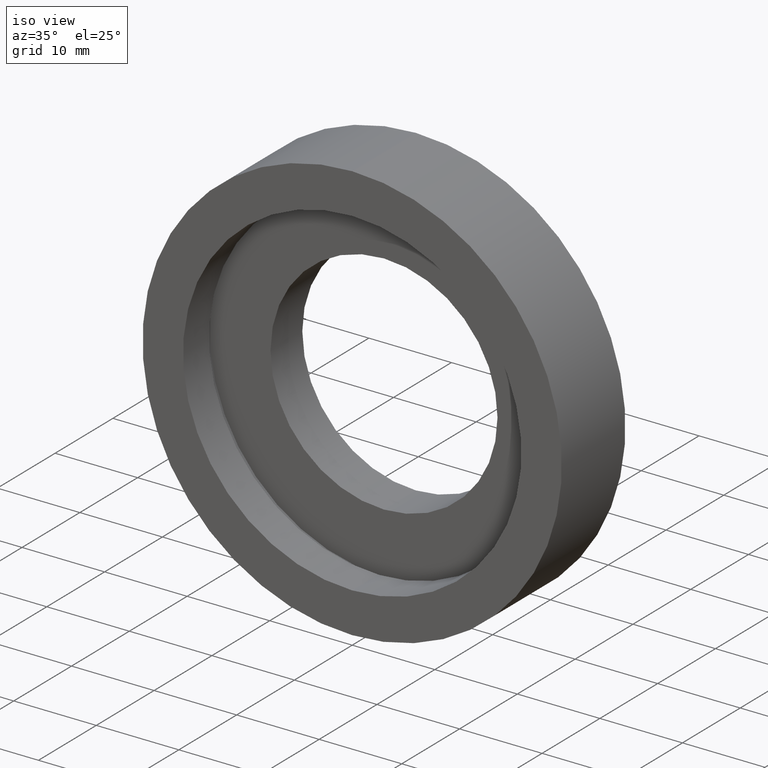
[diagram: clean part render]
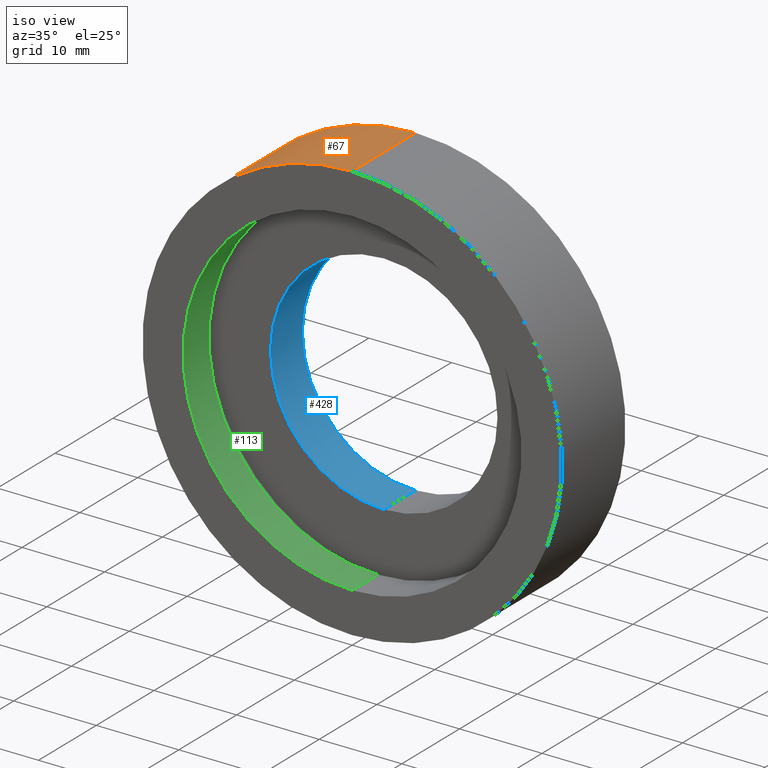
[diagram: same view with three faces highlighted in distinct colors, each labeled with its STEP entity id]
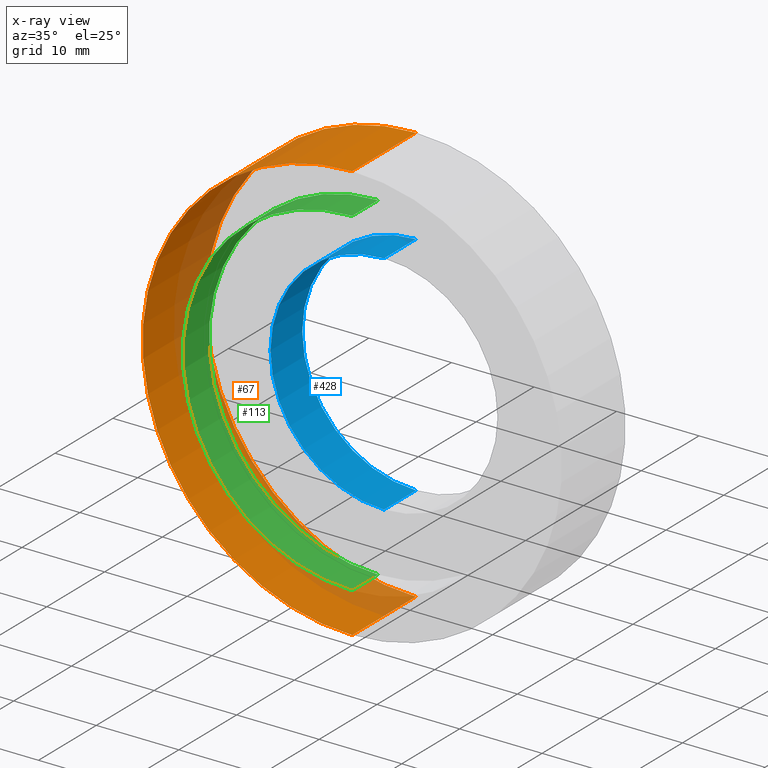
[diagram: x-ray of the same camera — body ghosted, the three highlighted faces saturated]
A machine part, iso view with three faces highlighted in distinct colors.
The next image is the same camera in x-ray (body ghosted, the three faces saturated) — at least one of them is partly hidden behind the body in this view.
Their STEP definitions:

[orange] entity #67 — the highlighted cylindrical surface (partial cylindrical patch) has radius 25.4 mm, axis along (-0, 1, -0).
#15 = DIRECTION ( 'NONE',  ( -0.0000000000000000000, 1.000000000000000000, -0.0000000000000000000 ) ) ;
#30 = DIRECTION ( 'NONE',  ( -0.0000000000000000000, 1.000000000000000000, -0.0000000000000000000 ) ) ;
#32 = AXIS2_PLACEMENT_3D ( 'NONE', #423, #30, #244 ) ;
#60 = CARTESIAN_POINT ( 'NONE',  ( 3.110602869834277300E-015, 0.0000000000000000000, -25.40000000000000200 ) ) ;
#66 = EDGE_CURVE ( 'NONE', #266, #87, #114, .T. ) ;
#67 = ADVANCED_FACE ( 'NONE', ( #400 ), #144, .T. ) ;
#76 = EDGE_CURVE ( 'NONE', #357, #87, #136, .T. ) ;
#79 = DIRECTION ( 'NONE',  ( 0.0000000000000000000, 0.0000000000000000000, 1.000000000000000000 ) ) ;
#81 = CARTESIAN_POINT ( 'NONE',  ( 0.0000000000000000000, 10.99999999999999600, 0.0000000000000000000 ) ) ;
#87 = VERTEX_POINT ( 'NONE', #256 ) ;
#106 = VECTOR ( 'NONE', #15, 1000.000000000000000 ) ;
#114 = LINE ( 'NONE', #165, #378 ) ;
#135 = CARTESIAN_POINT ( 'NONE',  ( 0.0000000000000000000, 60.02082041425541100, 0.0000000000000000000 ) ) ;
#136 = CIRCLE ( 'NONE', #202, 25.40000000000000200 ) ;
#139 = LINE ( 'NONE', #208, #106 ) ;
#144 = CYLINDRICAL_SURFACE ( 'NONE', #237, 25.40000000000000200 ) ;
#151 = EDGE_CURVE ( 'NONE', #397, #266, #248, .T. ) ;
#161 = EDGE_LOOP ( 'NONE', ( #415, #274, #341, #429 ) ) ;
#165 = CARTESIAN_POINT ( 'NONE',  ( 0.0000000000000000000, 60.02082041425541100, 25.40000000000000200 ) ) ;
#168 = DIRECTION ( 'NONE',  ( 0.0000000000000000000, 0.0000000000000000000, 1.000000000000000000 ) ) ;
#178 = DIRECTION ( 'NONE',  ( -0.0000000000000000000, 1.000000000000000000, -0.0000000000000000000 ) ) ;
#202 = AXIS2_PLACEMENT_3D ( 'NONE', #81, #308, #79 ) ;
#208 = CARTESIAN_POINT ( 'NONE',  ( 3.110602869834277300E-015, 60.02082041425541100, -25.40000000000000200 ) ) ;
#237 = AXIS2_PLACEMENT_3D ( 'NONE', #135, #178, #168 ) ;
#244 = DIRECTION ( 'NONE',  ( 0.0000000000000000000, 0.0000000000000000000, 1.000000000000000000 ) ) ;
#248 = CIRCLE ( 'NONE', #32, 25.40000000000000200 ) ;
#256 = CARTESIAN_POINT ( 'NONE',  ( 0.0000000000000000000, 10.99999999999999600, 25.40000000000000200 ) ) ;
#266 = VERTEX_POINT ( 'NONE', #374 ) ;
#274 = ORIENTED_EDGE ( 'NONE', *, *, #151, .T. ) ;
#306 = DIRECTION ( 'NONE',  ( -0.0000000000000000000, 1.000000000000000000, -0.0000000000000000000 ) ) ;
#308 = DIRECTION ( 'NONE',  ( -0.0000000000000000000, 1.000000000000000000, -0.0000000000000000000 ) ) ;
#341 = ORIENTED_EDGE ( 'NONE', *, *, #66, .T. ) ;
#357 = VERTEX_POINT ( 'NONE', #385 ) ;
#374 = CARTESIAN_POINT ( 'NONE',  ( 0.0000000000000000000, 0.0000000000000000000, 25.40000000000000200 ) ) ;
#378 = VECTOR ( 'NONE', #306, 1000.000000000000000 ) ;
#385 = CARTESIAN_POINT ( 'NONE',  ( 3.110602869834277300E-015, 10.99999999999999600, -25.40000000000000200 ) ) ;
#387 = EDGE_CURVE ( 'NONE', #397, #357, #139, .T. ) ;
#397 = VERTEX_POINT ( 'NONE', #60 ) ;
#400 = FACE_OUTER_BOUND ( 'NONE', #161, .T. ) ;
#415 = ORIENTED_EDGE ( 'NONE', *, *, #387, .F. ) ;
#423 = CARTESIAN_POINT ( 'NONE',  ( 0.0000000000000000000, 0.0000000000000000000, 0.0000000000000000000 ) ) ;
#429 = ORIENTED_EDGE ( 'NONE', *, *, #76, .F. ) ;

[blue] entity #428 — the highlighted cylindrical surface (partial cylindrical patch) has radius 13.75 mm, axis along (-0, 1, -0).
#18 = VERTEX_POINT ( 'NONE', #388 ) ;
#33 = EDGE_CURVE ( 'NONE', #169, #241, #72, .T. ) ;
#41 = CARTESIAN_POINT ( 'NONE',  ( 1.683889348827611400E-015, 60.02082041425541100, -13.75000000000000500 ) ) ;
#61 = ORIENTED_EDGE ( 'NONE', *, *, #95, .F. ) ;
#72 = LINE ( 'NONE', #41, #366 ) ;
#74 = EDGE_CURVE ( 'NONE', #241, #18, #150, .T. ) ;
#88 = CARTESIAN_POINT ( 'NONE',  ( 1.683889348827611800E-015, 10.99999999999999600, -13.75000000000000900 ) ) ;
#95 = EDGE_CURVE ( 'NONE', #100, #18, #162, .T. ) ;
#96 = AXIS2_PLACEMENT_3D ( 'NONE', #392, #198, #399 ) ;
#100 = VERTEX_POINT ( 'NONE', #206 ) ;
#131 = ORIENTED_EDGE ( 'NONE', *, *, #313, .F. ) ;
#150 = CIRCLE ( 'NONE', #336, 13.75000000000000700 ) ;
#153 = CARTESIAN_POINT ( 'NONE',  ( 1.683889348827611400E-015, 5.499999999999998200, -13.75000000000000500 ) ) ;
#162 = LINE ( 'NONE', #254, #411 ) ;
#169 = VERTEX_POINT ( 'NONE', #153 ) ;
#171 = DIRECTION ( 'NONE',  ( -0.0000000000000000000, 1.000000000000000000, -0.0000000000000000000 ) ) ;
#172 = FACE_OUTER_BOUND ( 'NONE', #272, .T. ) ;
#198 = DIRECTION ( 'NONE',  ( -0.0000000000000000000, 1.000000000000000000, -0.0000000000000000000 ) ) ;
#206 = CARTESIAN_POINT ( 'NONE',  ( 0.0000000000000000000, 5.499999999999998200, 13.75000000000000500 ) ) ;
#241 = VERTEX_POINT ( 'NONE', #88 ) ;
#245 = CARTESIAN_POINT ( 'NONE',  ( 0.0000000000000000000, 60.02082041425541100, 0.0000000000000000000 ) ) ;
#254 = CARTESIAN_POINT ( 'NONE',  ( 0.0000000000000000000, 60.02082041425541100, 13.75000000000000500 ) ) ;
#257 = ORIENTED_EDGE ( 'NONE', *, *, #74, .T. ) ;
#264 = DIRECTION ( 'NONE',  ( -0.0000000000000000000, 1.000000000000000000, -0.0000000000000000000 ) ) ;
#272 = EDGE_LOOP ( 'NONE', ( #131, #413, #257, #61 ) ) ;
#284 = CARTESIAN_POINT ( 'NONE',  ( 0.0000000000000000000, 10.99999999999999600, 0.0000000000000000000 ) ) ;
#287 = DIRECTION ( 'NONE',  ( -0.0000000000000000000, 1.000000000000000000, -0.0000000000000000000 ) ) ;
#299 = DIRECTION ( 'NONE',  ( 0.0000000000000000000, 0.0000000000000000000, 1.000000000000000000 ) ) ;
#304 = DIRECTION ( 'NONE',  ( -0.0000000000000000000, 1.000000000000000000, -0.0000000000000000000 ) ) ;
#313 = EDGE_CURVE ( 'NONE', #169, #100, #390, .T. ) ;
#336 = AXIS2_PLACEMENT_3D ( 'NONE', #284, #171, #299 ) ;
#353 = CYLINDRICAL_SURFACE ( 'NONE', #383, 13.75000000000000500 ) ;
#366 = VECTOR ( 'NONE', #287, 1000.000000000000000 ) ;
#383 = AXIS2_PLACEMENT_3D ( 'NONE', #245, #304, #422 ) ;
#388 = CARTESIAN_POINT ( 'NONE',  ( 0.0000000000000000000, 10.99999999999999600, 13.75000000000000700 ) ) ;
#390 = CIRCLE ( 'NONE', #96, 13.75000000000000500 ) ;
#392 = CARTESIAN_POINT ( 'NONE',  ( 0.0000000000000000000, 5.499999999999998200, 0.0000000000000000000 ) ) ;
#399 = DIRECTION ( 'NONE',  ( 0.0000000000000000000, 0.0000000000000000000, 1.000000000000000000 ) ) ;
#411 = VECTOR ( 'NONE', #264, 1000.000000000000000 ) ;
#413 = ORIENTED_EDGE ( 'NONE', *, *, #33, .T. ) ;
#422 = DIRECTION ( 'NONE',  ( 0.0000000000000000000, 0.0000000000000000000, 1.000000000000000000 ) ) ;
#428 = ADVANCED_FACE ( 'NONE', ( #172 ), #353, .F. ) ;

[green] entity #113 — the highlighted cylindrical surface (partial cylindrical patch) has radius 20.5 mm, axis along (-0, 1, -0).
#6 = AXIS2_PLACEMENT_3D ( 'NONE', #185, #59, #328 ) ;
#31 = ORIENTED_EDGE ( 'NONE', *, *, #56, .F. ) ;
#49 = AXIS2_PLACEMENT_3D ( 'NONE', #363, #180, #379 ) ;
#56 = EDGE_CURVE ( 'NONE', #63, #332, #433, .T. ) ;
#59 = DIRECTION ( 'NONE',  ( -0.0000000000000000000, 1.000000000000000000, -0.0000000000000000000 ) ) ;
#63 = VERTEX_POINT ( 'NONE', #351 ) ;
#65 = DIRECTION ( 'NONE',  ( -0.0000000000000000000, 1.000000000000000000, -0.0000000000000000000 ) ) ;
#102 = EDGE_CURVE ( 'NONE', #364, #126, #330, .T. ) ;
#113 = ADVANCED_FACE ( 'NONE', ( #340 ), #362, .F. ) ;
#117 = ORIENTED_EDGE ( 'NONE', *, *, #187, .F. ) ;
#124 = CIRCLE ( 'NONE', #6, 20.50000000000000700 ) ;
#126 = VERTEX_POINT ( 'NONE', #371 ) ;
#157 = EDGE_LOOP ( 'NONE', ( #117, #207, #215, #31 ) ) ;
#170 = EDGE_CURVE ( 'NONE', #126, #332, #232, .T. ) ;
#175 = VECTOR ( 'NONE', #213, 1000.000000000000000 ) ;
#180 = DIRECTION ( 'NONE',  ( -0.0000000000000000000, 1.000000000000000000, -0.0000000000000000000 ) ) ;
#185 = CARTESIAN_POINT ( 'NONE',  ( 0.0000000000000000000, 0.0000000000000000000, 0.0000000000000000000 ) ) ;
#187 = EDGE_CURVE ( 'NONE', #364, #63, #124, .T. ) ;
#207 = ORIENTED_EDGE ( 'NONE', *, *, #102, .T. ) ;
#213 = DIRECTION ( 'NONE',  ( -0.0000000000000000000, 1.000000000000000000, -0.0000000000000000000 ) ) ;
#215 = ORIENTED_EDGE ( 'NONE', *, *, #170, .T. ) ;
#226 = CARTESIAN_POINT ( 'NONE',  ( 0.0000000000000000000, 60.02082041425541100, 0.0000000000000000000 ) ) ;
#232 = CIRCLE ( 'NONE', #49, 20.50000000000000700 ) ;
#236 = DIRECTION ( 'NONE',  ( 0.0000000000000000000, 0.0000000000000000000, 1.000000000000000000 ) ) ;
#242 = CARTESIAN_POINT ( 'NONE',  ( 2.510525938252074900E-015, 0.0000000000000000000, -20.50000000000000700 ) ) ;
#314 = CARTESIAN_POINT ( 'NONE',  ( 0.0000000000000000000, 60.02082041425541100, 20.50000000000000700 ) ) ;
#328 = DIRECTION ( 'NONE',  ( 0.0000000000000000000, 0.0000000000000000000, 1.000000000000000000 ) ) ;
#330 = LINE ( 'NONE', #401, #175 ) ;
#332 = VERTEX_POINT ( 'NONE', #405 ) ;
#340 = FACE_OUTER_BOUND ( 'NONE', #157, .T. ) ;
#342 = VECTOR ( 'NONE', #389, 1000.000000000000000 ) ;
#351 = CARTESIAN_POINT ( 'NONE',  ( 0.0000000000000000000, 0.0000000000000000000, 20.50000000000000700 ) ) ;
#362 = CYLINDRICAL_SURFACE ( 'NONE', #393, 20.50000000000000700 ) ;
#363 = CARTESIAN_POINT ( 'NONE',  ( 0.0000000000000000000, 4.499999999999997300, 0.0000000000000000000 ) ) ;
#364 = VERTEX_POINT ( 'NONE', #242 ) ;
#371 = CARTESIAN_POINT ( 'NONE',  ( 2.510525938252074900E-015, 4.499999999999997300, -20.50000000000000700 ) ) ;
#379 = DIRECTION ( 'NONE',  ( 0.0000000000000000000, 0.0000000000000000000, 1.000000000000000000 ) ) ;
#389 = DIRECTION ( 'NONE',  ( -0.0000000000000000000, 1.000000000000000000, -0.0000000000000000000 ) ) ;
#393 = AXIS2_PLACEMENT_3D ( 'NONE', #226, #65, #236 ) ;
#401 = CARTESIAN_POINT ( 'NONE',  ( 2.510525938252074900E-015, 60.02082041425541100, -20.50000000000000700 ) ) ;
#405 = CARTESIAN_POINT ( 'NONE',  ( 0.0000000000000000000, 4.499999999999997300, 20.50000000000000700 ) ) ;
#433 = LINE ( 'NONE', #314, #342 ) ;